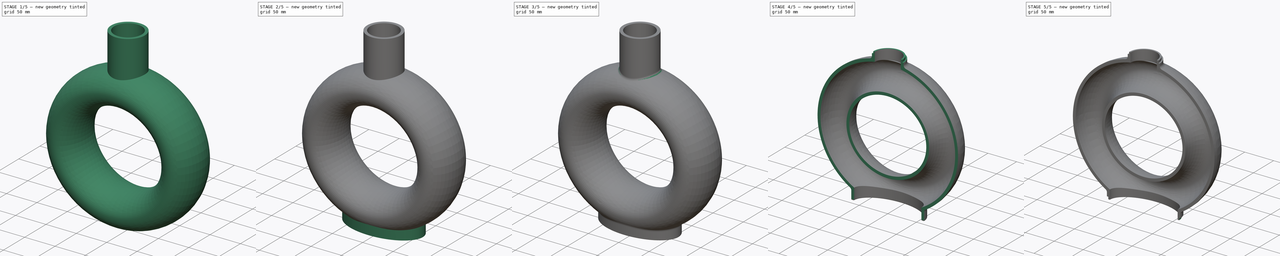
[diagram: build sequence overview — one tinted view per stage of 5, left to right]
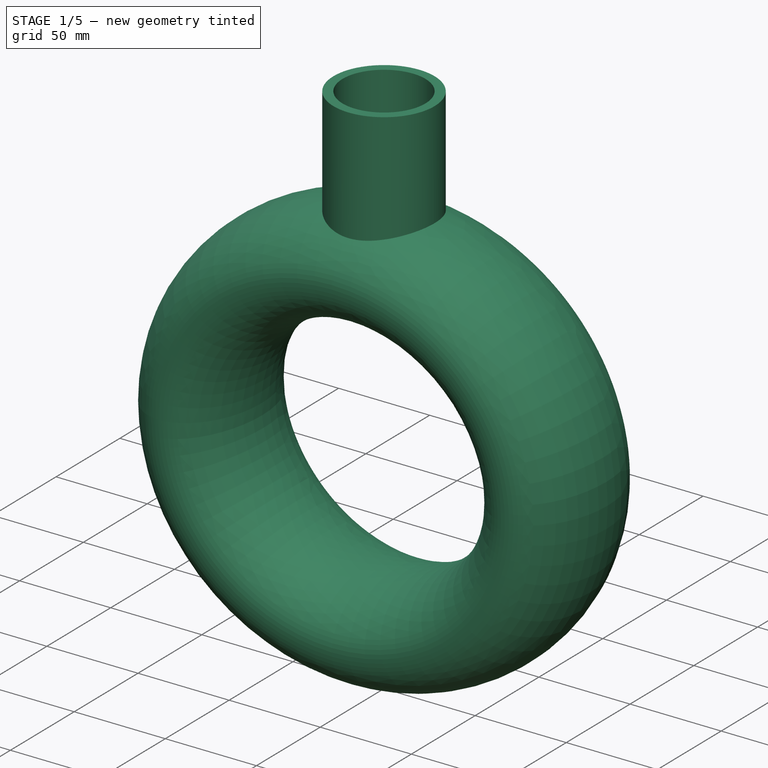
[diagram: stage 1 of 5 — iso view after this stage's code; geometry added in this stage tinted green]
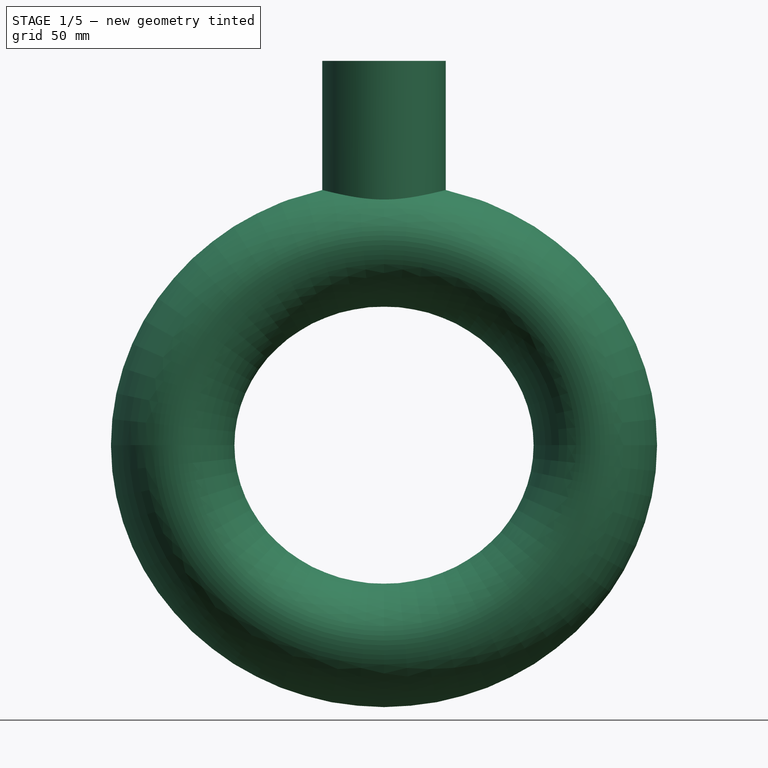
[diagram: stage 1 of 5 — front view after this stage's code; geometry added in this stage tinted green]
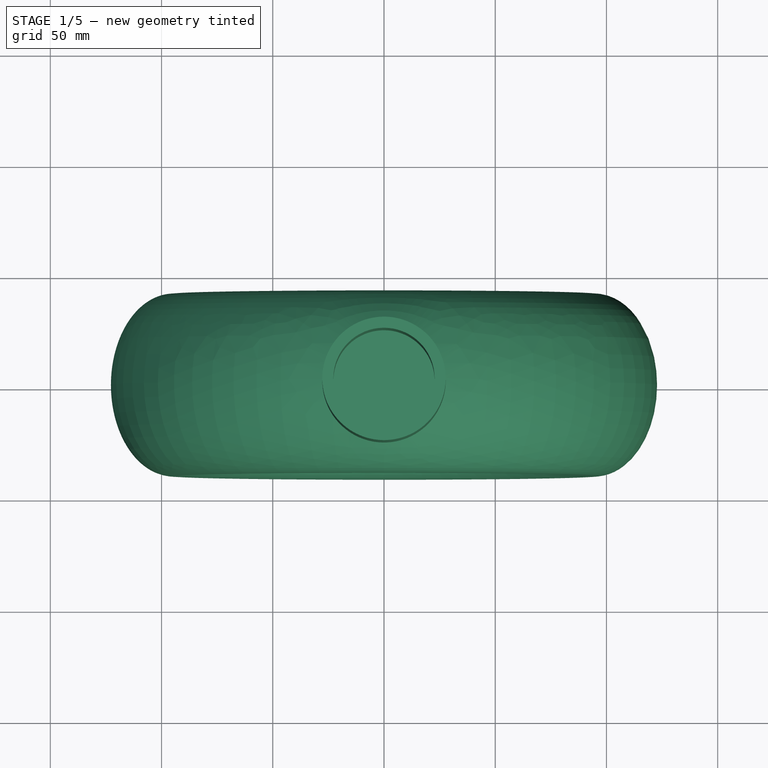
[diagram: stage 1 of 5 — top view after this stage's code; geometry added in this stage tinted green]
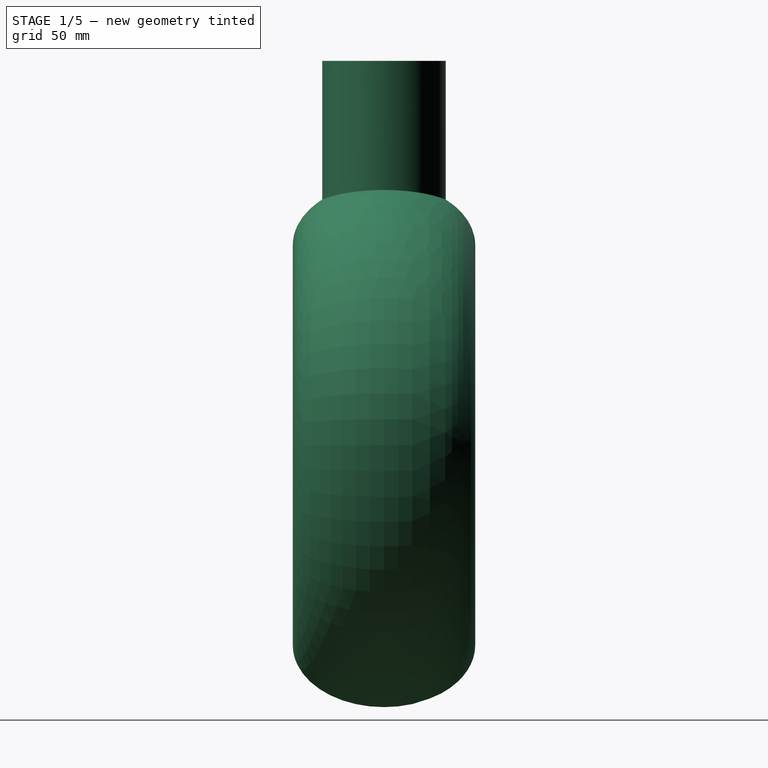
[diagram: stage 1 of 5 — right view after this stage's code; geometry added in this stage tinted green]
FCSTD DOCUMENT  (FreeCAD 0.21R33668 +26 (Git))
Label: VaseMainBody
License: All rights reserved
LicenseURL: http://en.wikipedia.org/wiki/All_rights_reserved
objects: Sketcher::SketchObject×12, PartDesign::Pocket×5, PartDesign::Fillet×4, PartDesign::Pad×3, Spreadsheet::Sheet×1, PartDesign::AdditivePipe×1, PartDesign::SubtractivePipe×1, PartDesign::Groove×1, PartDesign::Body×1
note: 43 computed .brp shape members not serialized (recipe doc carries the construction recipe); baked Part::Feature solids carry a one-line shape summary decoded from their .brp

FEATURE [Sketcher::SketchObject] Sketch  label="path"
  FullyConstrained = true
  MapMode = 5
  Placement = pos=(0,0,0) rot=(1,0,0;1.5708rad)
  Support = -> [XZ_Plane]
  expr: Constraints[4] = Spreadsheet.VaseWidth
  expr: Constraints[7] = Spreadsheet.VaseHeight
  sketch-geometry (5):
    g0: Ellipse CenterX=0 CenterY=0 CenterZ=0 NormalX=0 NormalY=0 NormalZ=1 MajorRadius=95 MinorRadius=90 AngleXU=-3.14159
    g1: LineSegment StartX=-95 StartY=0 StartZ=0 EndX=95 EndY=0 EndZ=0
    g2: LineSegment StartX=0 StartY=-90 StartZ=0 EndX=0 EndY=90 EndZ=0
    g3: GeomPoint X=-30.4138 Y=0 Z=0
    g4: GeomPoint X=30.4138 Y=0 Z=0
  constraints (5):
    c: InternalAlignment(g1-g4 -> g0) x4
    c: DistanceY(g2,g2) = 180
    c: Horizontal(g1)
    c: Coincident(g0,g-1)
    c: DistanceX(g1,g1) = 190
FEATURE [Spreadsheet::Sheet] Spreadsheet
  cells = A2='VaseDiameter; B2(VaseDiameter)=190; A3='EllipseWidth; B3(EllipseWidth)=82; A4='EllipseHeight; B4(EllipseHeight)=55.5; A5='wallThickness; B5(wallThickness)=5; A6='NeckHeight; B6(NeckHeight)=60; A7='NeckDiameter; B7(NeckDiameter)=55.5; A8='NeckOffset; B8(NeckOffset)=4; A9='BaseWidth; B9(BaseWidth)=127.5; A10='BaseHeight; B10(BaseHeight)=22.2; A11='BaseOffset; B11(BaseOffset)=2; A12='BaseDepth; B12(BaseDepth)=73.5; A13='VaseHeight; B13(VaseHeight)=190; A14='VaseWidth; B14(VaseWidth)=180; A15='BaseOffset2; B15(BaseOffset2)=17
FEATURE [Sketcher::SketchObject] Sketch001  label="EllipseRing"
  ExternalGeometry = -> [Sketch]
  FullyConstrained = true
  MapMode = 5
  Support = -> [XY_Plane]
  expr: Constraints[12] = Spreadsheet.EllipseHeight - 2 * Spreadsheet.wallThickness
  expr: Constraints[13] = Spreadsheet.EllipseWidth - 2 * Spreadsheet.wallThickness
  expr: Constraints[4] = <<Spreadsheet>>.EllipseHeight
  expr: Constraints[5] = Spreadsheet.EllipseWidth
  sketch-geometry (10):
    g0: Ellipse CenterX=-95 CenterY=0 CenterZ=0 NormalX=0 NormalY=0 NormalZ=1 MajorRadius=41 MinorRadius=27.75 AngleXU=1.5708
    g1: LineSegment StartX=-95 StartY=41 StartZ=0 EndX=-95 EndY=-41 EndZ=0
    g2: LineSegment StartX=-122.75 StartY=3.9e-15 StartZ=0 EndX=-67.25 EndY=-3.9e-15 EndZ=0
    g3: GeomPoint X=-95 Y=30.1817 Z=0
    g4: GeomPoint X=-95 Y=-30.1817 Z=0
    g5: Ellipse CenterX=-95 CenterY=0 CenterZ=0 NormalX=0 NormalY=0 NormalZ=1 MajorRadius=36 MinorRadius=22.75 AngleXU=1.5708
    g6: LineSegment StartX=-95 StartY=36 StartZ=0 EndX=-95 EndY=-36 EndZ=0
    g7: LineSegment StartX=-117.75 StartY=-3.8e-15 StartZ=0 EndX=-72.25 EndY=3.8e-15 EndZ=0
    g8: GeomPoint X=-95 Y=27.9005 Z=0
    g9: GeomPoint X=-95 Y=-27.9005 Z=0
  constraints (10):
    c: InternalAlignment(g1-g4 -> g0) x4
    c: DistanceX(g2,g2) = 55.5
    c: DistanceY(g1,g1) = 82
    c: Vertical(g1)
    c: InternalAlignment(g6-g9 -> g5) x4
    c: Coincident(g5,g0)
    c: DistanceX(g7,g7) = 45.5
    c: DistanceY(g6,g6) = 72
    c: Vertical(g6)
    c: Coincident(g0,g-3)
FEATURE [PartDesign::AdditivePipe] AdditivePipe
  AuxilleryCurvelinear = true
  AuxillerySpineTangent = false
  Binormal = (0,0,0)
  Mode = 0
  Profile = -> Sketch001
  Spine = -> Sketch
  SpineTangent = false
  Transformation = 0
  Transition = 0
FEATURE [Sketcher::SketchObject] Sketch002  label="Neck"
  AttachmentOffset = pos=(0,0,112.75) rot=(0,0,1;0rad)
  FullyConstrained = true
  MapMode = 5
  Placement = pos=(0,0,112.75) rot=(0,0,1;0rad)
  Support = -> [XY_Plane]
  expr: .AttachmentOffset.Base.z = Spreadsheet.VaseWidth / 2 + (Spreadsheet.EllipseHeight - 2 * Spreadsheet.wallThickness) / 2
  expr: Constraints[1] = Spreadsheet.NeckDiameter
  sketch-geometry (1):
    g0: Circle CenterX=0 CenterY=0 CenterZ=0 NormalX=0 NormalY=0 NormalZ=1 AngleXU=0 Radius=27.75
  constraints (2):
    c: Coincident(g0,g-1)
    c: Diameter(g0) = 55.5
FEATURE [PartDesign::Pad] Pad
  BaseFeature = -> AdditivePipe
  Direction = (0,0,1)
  Length = 60
  Length2 = 4
  Profile = -> Sketch002
  ReferenceAxis = -> Sketch002 [N_Axis]
  Type = 4
  expr: Length = Spreadsheet.NeckHeight
  expr: Length2 = Spreadsheet.NeckOffset
FEATURE [Sketcher::SketchObject] Sketch003
  FullyConstrained = true
  MapMode = 5
  Placement = pos=(0,0,172.75) rot=(0,0,1;0rad)
  Support = -> [Pad]
  expr: Constraints[1] = Spreadsheet.NeckDiameter - 2 * Spreadsheet.wallThickness
  sketch-geometry (1):
    g0: Circle CenterX=0 CenterY=0 CenterZ=0 NormalX=0 NormalY=0 NormalZ=1 AngleXU=0 Radius=22.75
  constraints (2):
    c: Coincident(g0,g-1)
    c: Diameter(g0) = 45.5
FEATURE [PartDesign::Pocket] Pocket
  BaseFeature = -> Pad
  Direction = (0,0,-1)
  Length = 64
  Length2 = 5
  Profile = -> Sketch003
  ReferenceAxis = -> Sketch003 [N_Axis]
  Type = 0
  expr: Length = Spreadsheet.NeckHeight + Spreadsheet.NeckOffset
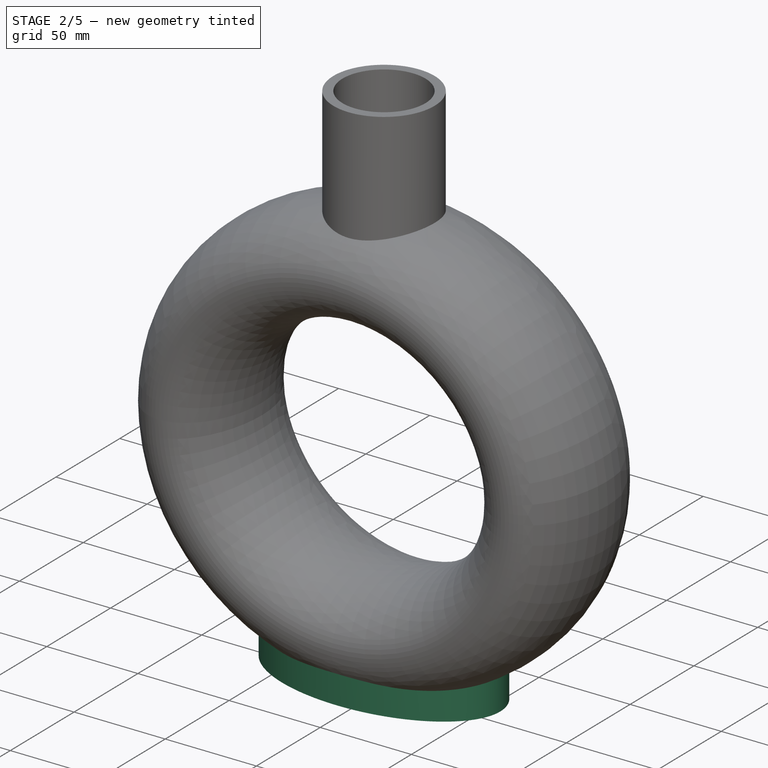
[diagram: stage 2 of 5 — iso view after this stage's code; geometry added in this stage tinted green]
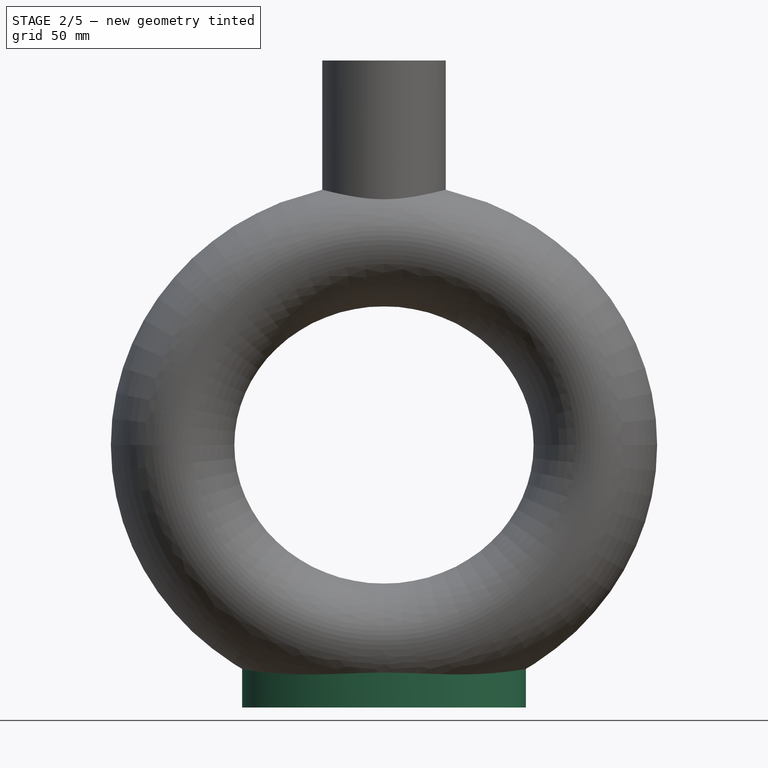
[diagram: stage 2 of 5 — front view after this stage's code; geometry added in this stage tinted green]
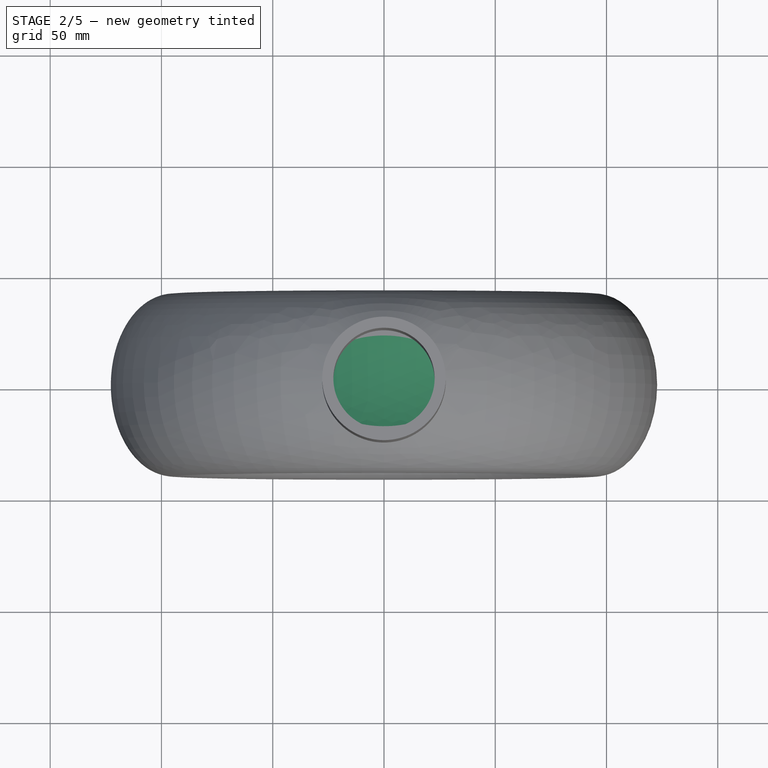
[diagram: stage 2 of 5 — top view after this stage's code; geometry added in this stage tinted green]
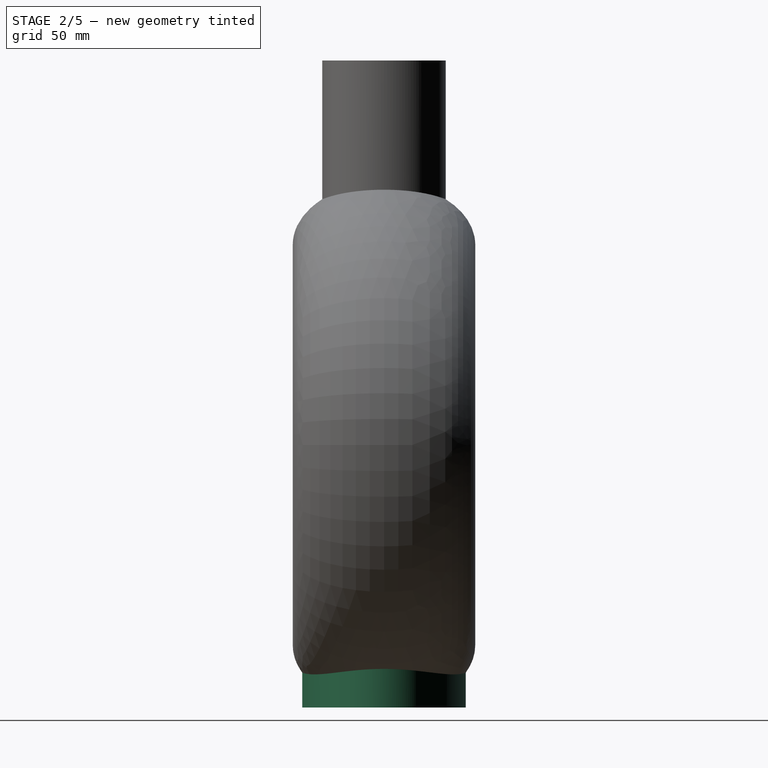
[diagram: stage 2 of 5 — right view after this stage's code; geometry added in this stage tinted green]
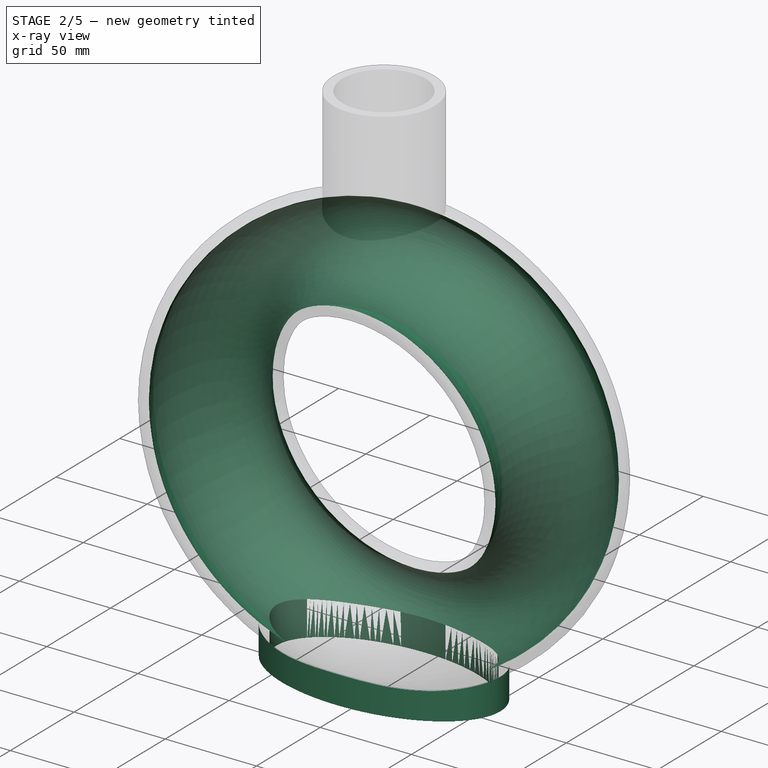
[diagram: stage 2 of 5 — x-ray composite at the iso view; earlier geometry ghosted, this stage's added geometry solid]
FEATURE [Sketcher::SketchObject] Sketch004
  AttachmentOffset = pos=(0,0,-95.75) rot=(0,0,1;0rad)
  FullyConstrained = true
  MapMode = 5
  Placement = pos=(0,0,-95.75) rot=(0,0,1;0rad)
  Support = -> [XY_Plane]
  expr: .AttachmentOffset.Base.z = -(Spreadsheet.VaseWidth / 2 + (Spreadsheet.EllipseHeight - 2 * Spreadsheet.wallThickness) / 2) + Spreadsheet.BaseOffset2
  expr: Constraints[5] = Spreadsheet.BaseDepth
  expr: Constraints[6] = Spreadsheet.BaseWidth
  sketch-geometry (5):
    g0: Ellipse CenterX=0 CenterY=0 CenterZ=0 NormalX=0 NormalY=0 NormalZ=1 MajorRadius=63.75 MinorRadius=36.75 AngleXU=3.14159
    g1: LineSegment StartX=-63.75 StartY=0 StartZ=0 EndX=63.75 EndY=0 EndZ=0
    g2: LineSegment StartX=0 StartY=-36.75 StartZ=0 EndX=0 EndY=36.75 EndZ=0
    g3: GeomPoint X=-52.0913 Y=0 Z=0
    g4: GeomPoint X=52.0913 Y=0 Z=0
  constraints (5):
    c: InternalAlignment(g1-g4 -> g0) x4
    c: Coincident(g0,g-1)
    c: DistanceY(g2,g2) = 73.5
    c: DistanceX(g1,g1) = 127.5
    c: Vertical(g2)
FEATURE [PartDesign::Pad] Pad001
  BaseFeature = -> Pocket
  Direction = (0,0,1)
  Length = -22.2
  Length2 = -2
  Profile = -> Sketch004
  ReferenceAxis = -> Sketch004 [N_Axis]
  Type = 4
  expr: Length = -Spreadsheet.BaseHeight
  expr: Length2 = -Spreadsheet.BaseOffset
FEATURE [Sketcher::SketchObject] Sketch005
  ExternalGeometry = -> [Sketch]
  FullyConstrained = true
  MapMode = 5
  Support = -> [XY_Plane]
  expr: Constraints[4] = Spreadsheet.EllipseHeight - 2 * Spreadsheet.wallThickness
  expr: Constraints[5] = Spreadsheet.EllipseWidth - 2 * Spreadsheet.wallThickness
  sketch-geometry (5):
    g0: Ellipse CenterX=-95 CenterY=0 CenterZ=0 NormalX=0 NormalY=0 NormalZ=1 MajorRadius=36 MinorRadius=22.75 AngleXU=-1.5708
    g1: LineSegment StartX=-95 StartY=-36 StartZ=0 EndX=-95 EndY=36 EndZ=0
    g2: LineSegment StartX=-72.25 StartY=-3.8e-15 StartZ=0 EndX=-117.75 EndY=3.8e-15 EndZ=0
    g3: GeomPoint X=-95 Y=-27.9005 Z=0
    g4: GeomPoint X=-95 Y=27.9005 Z=0
  constraints (5):
    c: InternalAlignment(g1-g4 -> g0) x4
    c: DistanceX(g2,g2) = 45.5
    c: DistanceY(g1,g1) = 72
    c: Vertical(g1)
    c: Coincident(g0,g-3)
FEATURE [PartDesign::SubtractivePipe] SubtractivePipe
  AuxilleryCurvelinear = true
  AuxillerySpineTangent = false
  BaseFeature = -> Pad001
  Binormal = (0,0,0)
  Mode = 0
  Profile = -> Sketch005
  Spine = -> Sketch [Edge1]
  SpineTangent = false
  Transformation = 0
  Transition = 0
FEATURE [Sketcher::SketchObject] Sketch006
  FullyConstrained = true
  MapMode = 5
  Placement = pos=(0,0,-117.95) rot=(1,0,0;3.14159rad)
  Support = -> [SubtractivePipe]
  expr: Constraints[5] = Spreadsheet.BaseDepth - 2 * Spreadsheet.wallThickness
  expr: Constraints[6] = Spreadsheet.BaseWidth - 2 * Spreadsheet.wallThickness
  sketch-geometry (5):
    g0: Ellipse CenterX=0 CenterY=0 CenterZ=0 NormalX=0 NormalY=0 NormalZ=1 MajorRadius=58.75 MinorRadius=31.75 AngleXU=-3.14159
    g1: LineSegment StartX=-58.75 StartY=0 StartZ=0 EndX=58.75 EndY=0 EndZ=0
    g2: LineSegment StartX=-1.042e-13 StartY=-31.75 StartZ=0 EndX=1.042e-13 EndY=31.75 EndZ=0
    g3: GeomPoint X=-49.4318 Y=-6.69e-14 Z=0
    g4: GeomPoint X=49.4318 Y=6.69e-14 Z=0
  constraints (5):
    c: InternalAlignment(g1-g4 -> g0) x4
    c: Coincident(g0,g-1)
    c: DistanceY(g2,g2) = 63.5
    c: DistanceX(g1,g1) = 117.5
    c: Horizontal(g1)
FEATURE [PartDesign::Pocket] Pocket001
  BaseFeature = -> SubtractivePipe
  Direction = (0,0,1)
  Length = 24.2
  Length2 = 5
  Profile = -> Sketch006
  ReferenceAxis = -> Sketch006 [N_Axis]
  Type = 0
  expr: Length = Spreadsheet.BaseHeight + Spreadsheet.BaseOffset
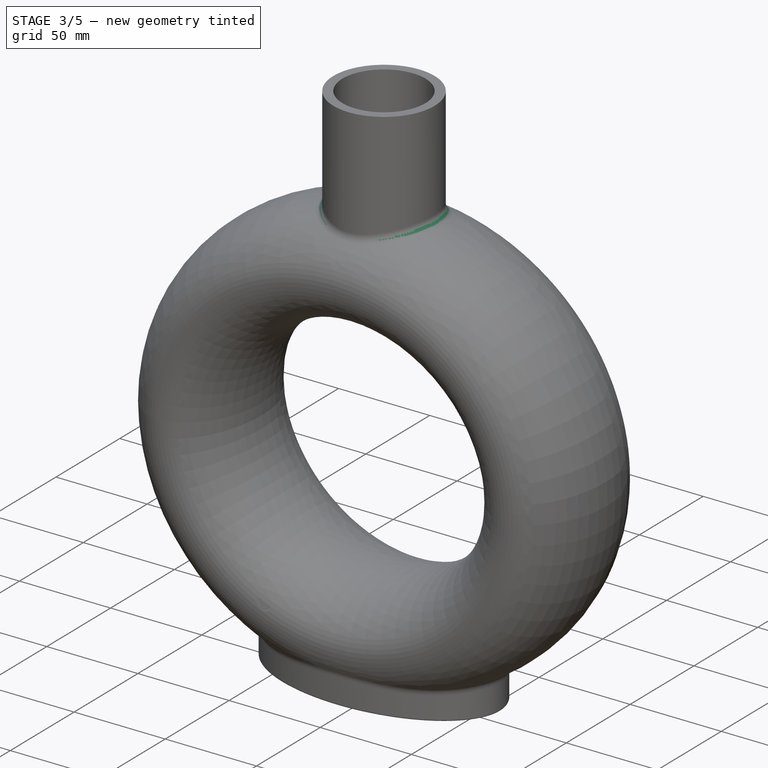
[diagram: stage 3 of 5 — iso view after this stage's code; geometry added in this stage tinted green]
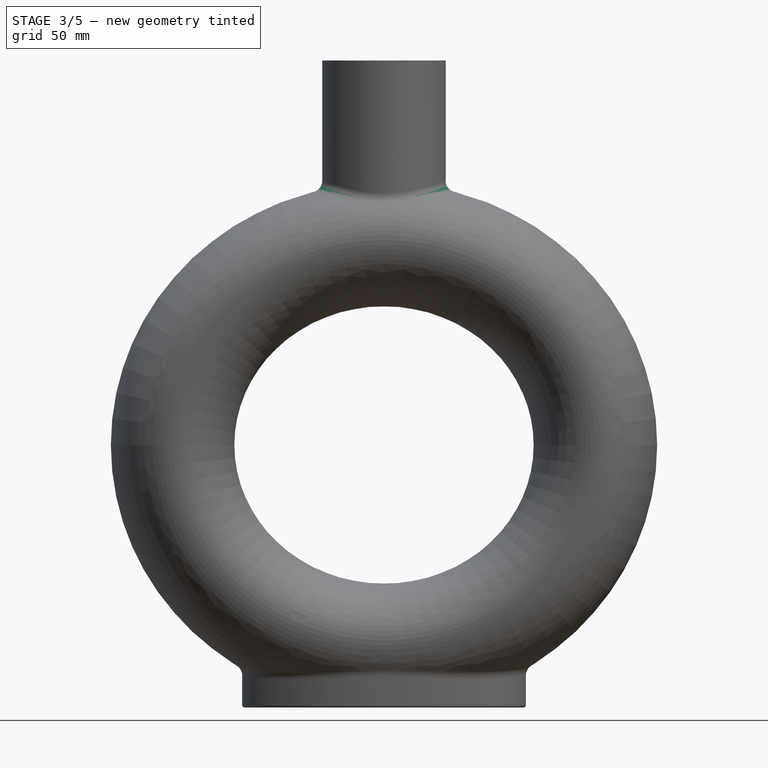
[diagram: stage 3 of 5 — front view after this stage's code; geometry added in this stage tinted green]
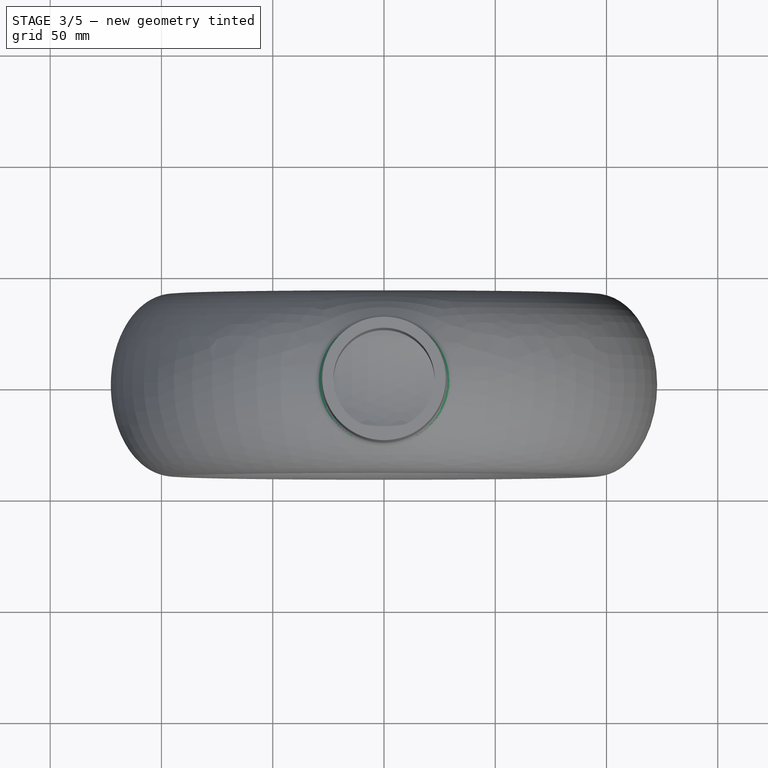
[diagram: stage 3 of 5 — top view after this stage's code; geometry added in this stage tinted green]
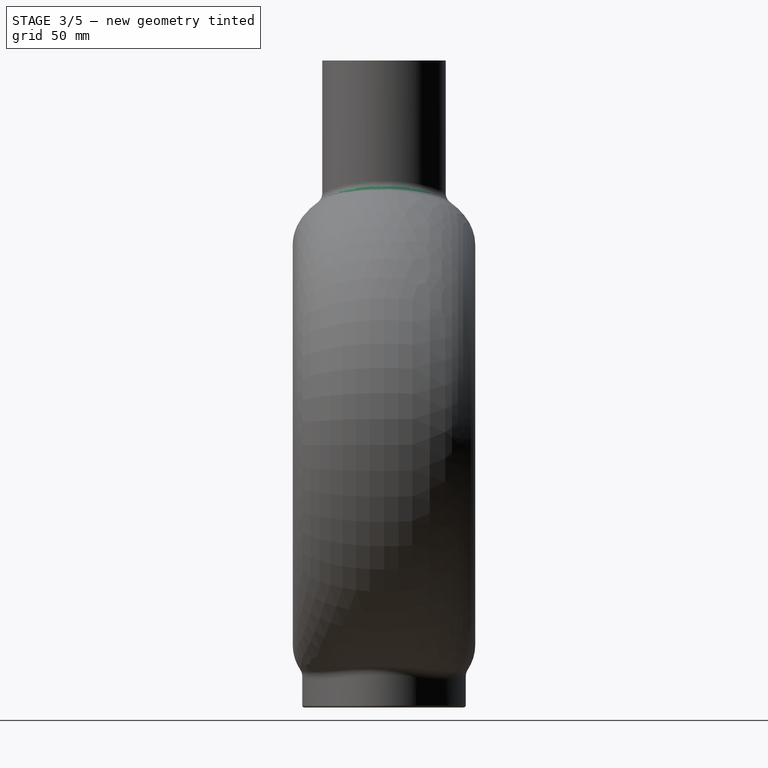
[diagram: stage 3 of 5 — right view after this stage's code; geometry added in this stage tinted green]
FEATURE [PartDesign::Fillet] Fillet
  Base = -> Pocket001 [Edge10,Edge7]
  BaseFeature = -> Pocket001
  Radius = 1
  SupportTransform = false
  UseAllEdges = false
FEATURE [PartDesign::Fillet] Fillet001
  Base = -> Fillet [Edge3]
  BaseFeature = -> Fillet
  Radius = 5
  SupportTransform = false
  UseAllEdges = false
FEATURE [PartDesign::Fillet] Fillet002
  Base = -> Fillet001 [Edge11]
  BaseFeature = -> Fillet001
  Radius = 5
  SupportTransform = false
  UseAllEdges = false
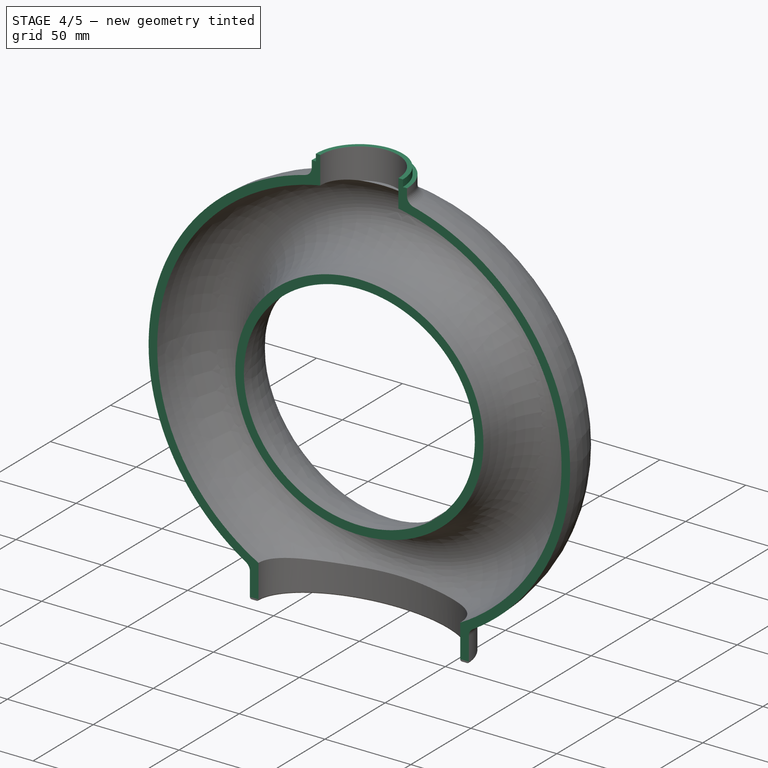
[diagram: stage 4 of 5 — iso view after this stage's code; geometry added in this stage tinted green]
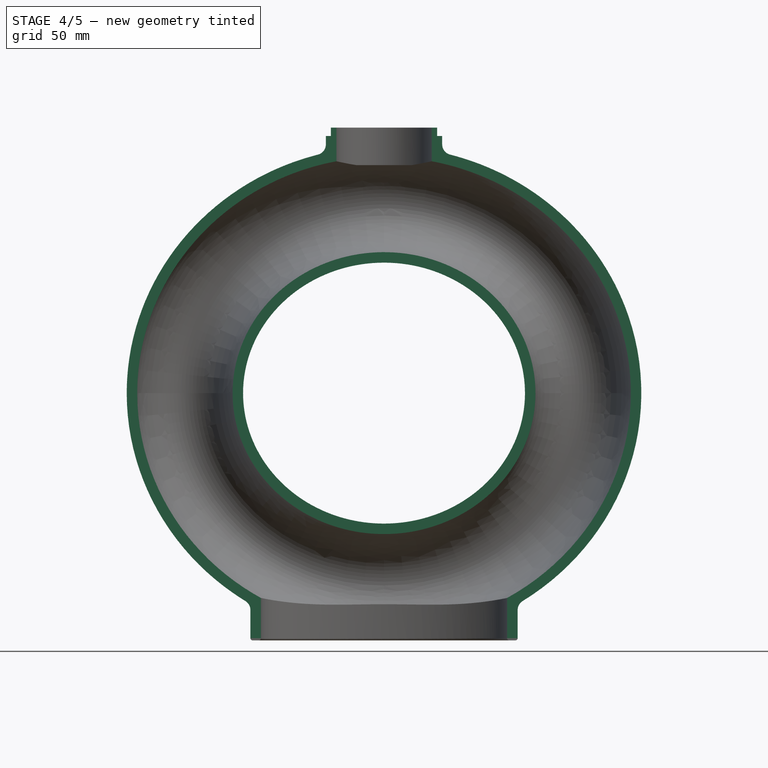
[diagram: stage 4 of 5 — front view after this stage's code; geometry added in this stage tinted green]
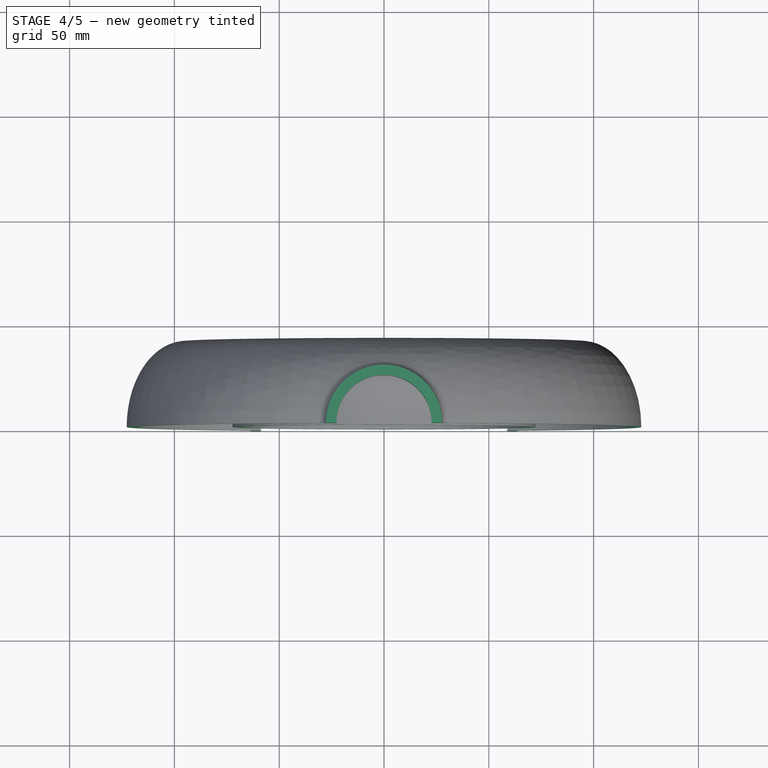
[diagram: stage 4 of 5 — top view after this stage's code; geometry added in this stage tinted green]
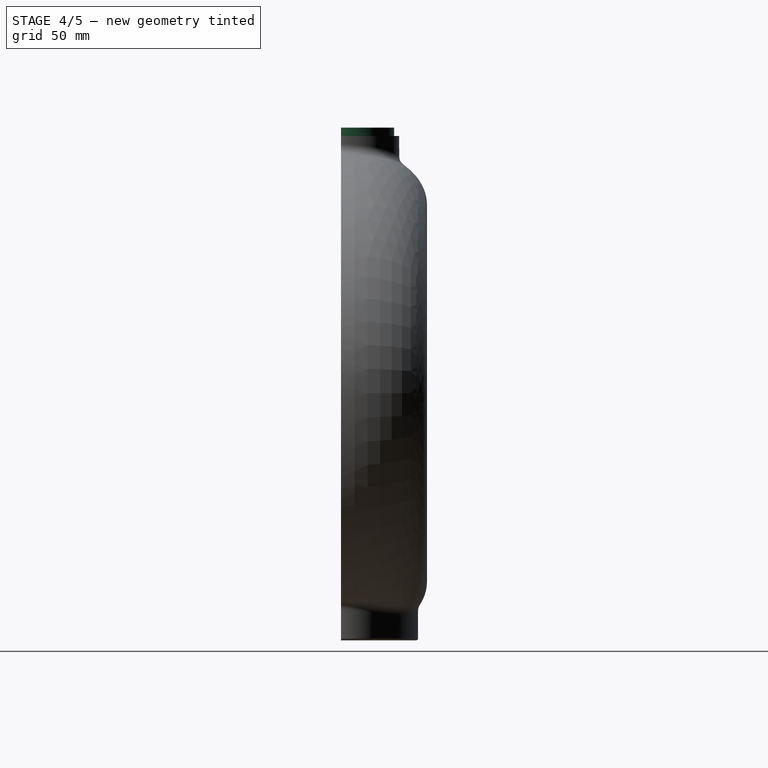
[diagram: stage 4 of 5 — right view after this stage's code; geometry added in this stage tinted green]
FEATURE [PartDesign::Fillet] Fillet003
  Base = -> Fillet002 [Edge10,Edge13]
  BaseFeature = -> Fillet002
  Radius = 1
  SupportTransform = false
  UseAllEdges = false
FEATURE [Sketcher::SketchObject] Sketch007
  FullyConstrained = true
  MapMode = 5
  Placement = pos=(0,0,0) rot=(1,0,0;1.5708rad)
  Support = -> [XZ_Plane]
  sketch-geometry (5):
    g0: LineSegment StartX=200 StartY=-200 StartZ=0 EndX=200 EndY=200 EndZ=0
    g1: LineSegment StartX=200 StartY=200 StartZ=0 EndX=-200 EndY=200 EndZ=0
    g2: LineSegment StartX=-200 StartY=200 StartZ=0 EndX=-200 EndY=-200 EndZ=0
    g3: LineSegment StartX=-200 StartY=-200 StartZ=0 EndX=200 EndY=-200 EndZ=0
    g4: GeomPoint X=0 Y=0 Z=0
  constraints (12):
    c: Coincident(g0,g1)
    c: Coincident(g1,g2)
    c: Coincident(g2,g3)
    c: Coincident(g3,g0)
    c: Horizontal(g1)
    c: Horizontal(g3)
    c: Vertical(g0)
    c: Vertical(g2)
    c: Symmetric(g1,g0,g4)
    c: Coincident(g4,g-1)
    c: Equal(g0,g1)
    c: DistanceX(g1,g1) = 400
FEATURE [PartDesign::Pocket] Pocket002
  BaseFeature = -> Fillet003
  Direction = (0,1,-2e-16)
  Length = 64
  Length2 = 5
  Profile = -> Sketch007
  ReferenceAxis = -> Sketch007 [N_Axis]
  Reversed = true
  Type = 1
FEATURE [Sketcher::SketchObject] Sketch008
  ExternalGeometry = -> [Pocket002]
  FullyConstrained = true
  MapMode = 5
  Placement = pos=(0,0,0) rot=(1,0,0;1.5708rad)
  Support = -> [XZ_Plane]
  sketch-geometry (32):
    g0: LineSegment StartX=-63.75 StartY=-103.467 StartZ=0 EndX=63.75 EndY=-103.467 EndZ=0
    g1: LineSegment StartX=-27.75 StartY=118.65 StartZ=0 EndX=27.75 EndY=118.65 EndZ=0
    g2: LineSegment StartX=-27.75 StartY=126.65 StartZ=0 EndX=27.75 EndY=126.65 EndZ=0
    g3: LineSegment StartX=-63.75 StartY=-111.467 StartZ=0 EndX=63.75 EndY=-111.467 EndZ=0
    g4: LineSegment StartX=-27.75 StartY=126.65 StartZ=0 EndX=-25.35 EndY=126.65 EndZ=0
    g5: LineSegment StartX=27.75 StartY=126.65 StartZ=0 EndX=25.35 EndY=126.65 EndZ=0
    g6: LineSegment StartX=-25.35 StartY=126.65 StartZ=0 EndX=-25.35 EndY=122.65 EndZ=0
    g7: LineSegment StartX=25.35 StartY=126.65 StartZ=0 EndX=25.35 EndY=122.65 EndZ=0
    g8: LineSegment StartX=-25.35 StartY=122.65 StartZ=0 EndX=25.35 EndY=122.65 EndZ=0
    g9: LineSegment StartX=-27.75 StartY=126.65 StartZ=0 EndX=-32.75 EndY=126.65 EndZ=0
    g10: LineSegment StartX=27.75 StartY=126.65 StartZ=0 EndX=32.75 EndY=126.65 EndZ=0
    g11: LineSegment StartX=32.75 StartY=126.65 StartZ=0 EndX=32.75 EndY=186.65 EndZ=0
    g12: LineSegment StartX=-32.75 StartY=126.65 StartZ=0 EndX=-32.75 EndY=186.65 EndZ=0
    g13: LineSegment StartX=-32.75 StartY=186.65 StartZ=0 EndX=32.75 EndY=186.65 EndZ=0
    g14: LineSegment StartX=-25.35 StartY=126.65 StartZ=0 EndX=25.35 EndY=126.65 EndZ=0
    g15: LineSegment StartX=-25.35 StartY=122.65 StartZ=0 EndX=-32.75 EndY=122.65 EndZ=0
    g16: LineSegment StartX=-32.75 StartY=126.65 StartZ=0 EndX=-32.75 EndY=122.65 EndZ=0
    g17: LineSegment StartX=25.35 StartY=122.65 StartZ=0 EndX=32.75 EndY=122.65 EndZ=0
    g18: LineSegment StartX=32.75 StartY=126.65 StartZ=0 EndX=32.75 EndY=122.65 EndZ=0
    g19: LineSegment StartX=-63.75 StartY=-107.467 StartZ=0 EndX=-61.35 EndY=-107.467 EndZ=0
    g20: LineSegment StartX=63.75 StartY=-107.467 StartZ=0 EndX=61.35 EndY=-107.467 EndZ=0
    g21: LineSegment StartX=-61.35 StartY=-107.467 StartZ=0 EndX=-61.35 EndY=-103.467 EndZ=0
    g22: LineSegment StartX=61.35 StartY=-107.467 StartZ=0 EndX=61.35 EndY=-103.467 EndZ=0
    g23: LineSegment StartX=61.35 StartY=-103.467 StartZ=0 EndX=-61.35 EndY=-103.467 EndZ=0
    g24: LineSegment StartX=-63.75 StartY=-107.467 StartZ=0 EndX=-68.75 EndY=-107.467 EndZ=0
    g25: LineSegment StartX=63.75 StartY=-107.467 StartZ=0 EndX=68.75 EndY=-107.467 EndZ=0
    g26: LineSegment StartX=-68.75 StartY=-107.467 StartZ=0 EndX=-68.75 EndY=-137.467 EndZ=0
    g27: LineSegment StartX=-68.75 StartY=-137.467 StartZ=0 EndX=68.75 EndY=-137.467 EndZ=0
    g28: LineSegment StartX=68.75 StartY=-137.467 StartZ=0 EndX=68.75 EndY=-107.467 EndZ=0
    g29: LineSegment StartX=-25.35 StartY=126.65 StartZ=0 EndX=0 EndY=126.65 EndZ=0
    g30: LineSegment StartX=0 StartY=126.65 StartZ=0 EndX=0 EndY=186.65 EndZ=0
    g31: LineSegment StartX=-32.75 StartY=186.65 StartZ=0 EndX=0 EndY=186.65 EndZ=0
  constraints (91):
    c: Coincident(g0,g-3)
    c: Coincident(g0,g-4)
    c: Coincident(g1,g-5)
    c: Coincident(g1,g-6)
    c: PointOnObject(g2,g-7)
    c: PointOnObject(g2,g-8)
    c: Horizontal(g2)
    c: DistanceY(g1,g2) = 8
    c: PointOnObject(g3,g-9)
    c: PointOnObject(g3,g-10)
    c: Horizontal(g3)
    c: DistanceY(g3,g0) = 8
    c: Coincident(g4,g2)
    c: PointOnObject(g4,g2)
    c: Coincident(g5,g2)
    c: PointOnObject(g5,g2)
    c: Equal(g5,g4)
    c: DistanceX(g4,g4) = 2.4
    c: Coincident(g6,g4)
    c: Vertical(g6)
    c: Coincident(g7,g5)
    c: Vertical(g7)
    c: Coincident(g8,g6)
    c: Coincident(g8,g7)
    c: Horizontal(g8)
    c: DistanceY(g6,g6) = 4
    c: Coincident(g9,g4)
    c: Horizontal(g9)
    c: Coincident(g10,g5)
    c: Horizontal(g10)
    c: Equal(g10,g9)
    c: DistanceX(g10,g10) = 5
    c: Coincident(g11,g10)
    c: Vertical(g11)
    c: Coincident(g12,g9)
    c: Vertical(g12)
    c: Equal(g12,g11)
    c: DistanceY(g11,g11) = 60
    c: PointOnObject(g13,g12)
    c: Coincident(g13,g11)
    c: Horizontal(g13)
    c: Coincident(g14,g4)
    c: Coincident(g14,g7)
    c: Coincident(g15,g6)
    c: Horizontal(g15)
    c: Coincident(g16,g12)
    c: Coincident(g16,g15)
    c: Vertical(g16)
    c: Coincident(g17,g7)
    c: Horizontal(g17)
    c: Coincident(g18,g11)
    c: Coincident(g18,g17)
    c: Vertical(g18)
    c: PointOnObject(g19,g-9)
    c: Horizontal(g19)
    c: PointOnObject(g20,g-10)
    c: Horizontal(g20)
    c: Equal(g20,g19)
    c: DistanceX(g19,g19) = 2.4
    c: DistanceY(g19,g0) = 4
    c: Coincident(g21,g19)
    c: PointOnObject(g21,g0)
    c: Vertical(g21)
    c: Horizontal(g20,g19)
    c: Coincident(g22,g20)
    c: PointOnObject(g22,g0)
    c: Vertical(g22)
    c: Coincident(g23,g22)
    c: Coincident(g23,g21)
    c: Coincident(g24,g19)
    c: Horizontal(g24)
    c: Coincident(g25,g20)
    c: Horizontal(g25)
    c: Equal(g25,g24)
    c: DistanceX(g24,g24) = 5
    c: Coincident(g26,g24)
    c: Vertical(g26)
    c: Coincident(g27,g26)
    c: Horizontal(g27)
    c: Coincident(g28,g27)
    c: Coincident(g28,g25)
    c: Vertical(g28)
    c: DistanceY(g28,g28) = 30
    c: Coincident(g29,g6)
    c: PointOnObject(g29,g-2)
    c: PointOnObject(g29,g2)
    c: Coincident(g30,g29)
    c: PointOnObject(g30,g13)
    c: Vertical(g30)
    c: Coincident(g31,g12)
    c: Coincident(g31,g30)
FEATURE [PartDesign::Groove] Groove
  Angle = 360
  Axis = (0,2e-16,1)
  Base = (0,0,0)
  BaseFeature = -> Pocket002
  Profile = -> Sketch008
  ReferenceAxis = -> Sketch008 [V_Axis]
  Reversed = true
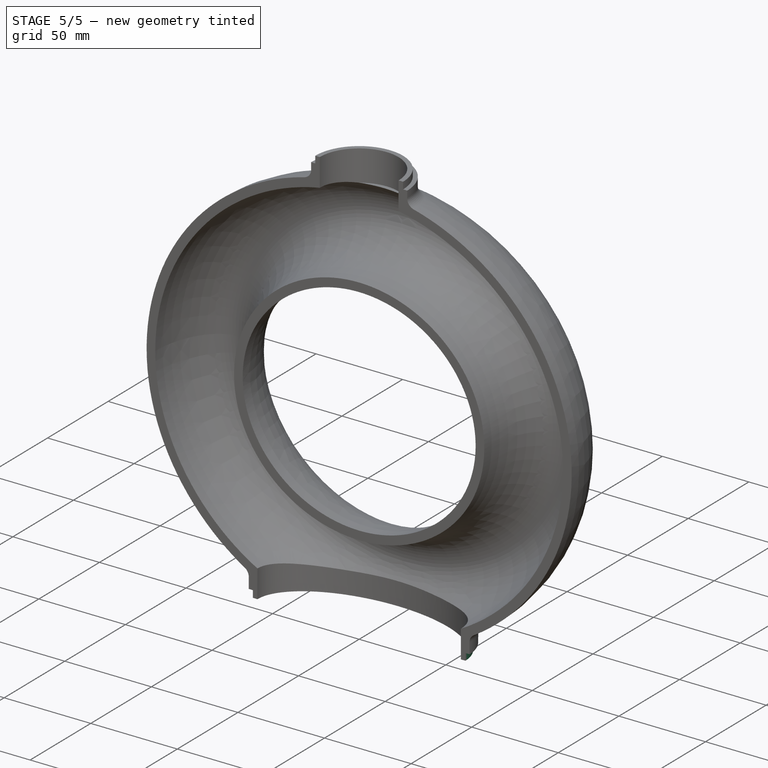
[diagram: stage 5 of 5 — iso view after this stage's code; geometry added in this stage tinted green]
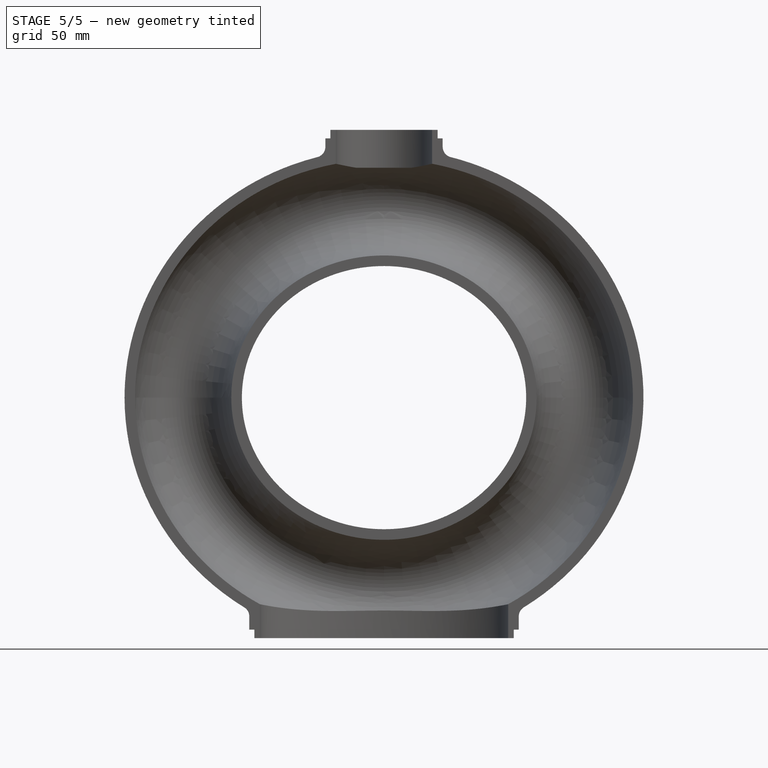
[diagram: stage 5 of 5 — front view after this stage's code; geometry added in this stage tinted green]
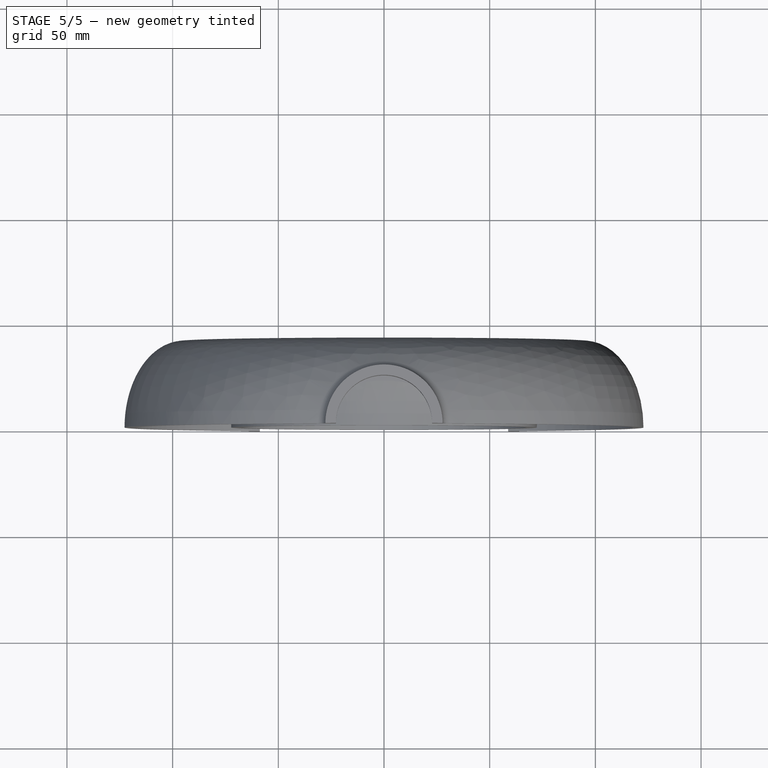
[diagram: stage 5 of 5 — top view after this stage's code; geometry added in this stage tinted green]
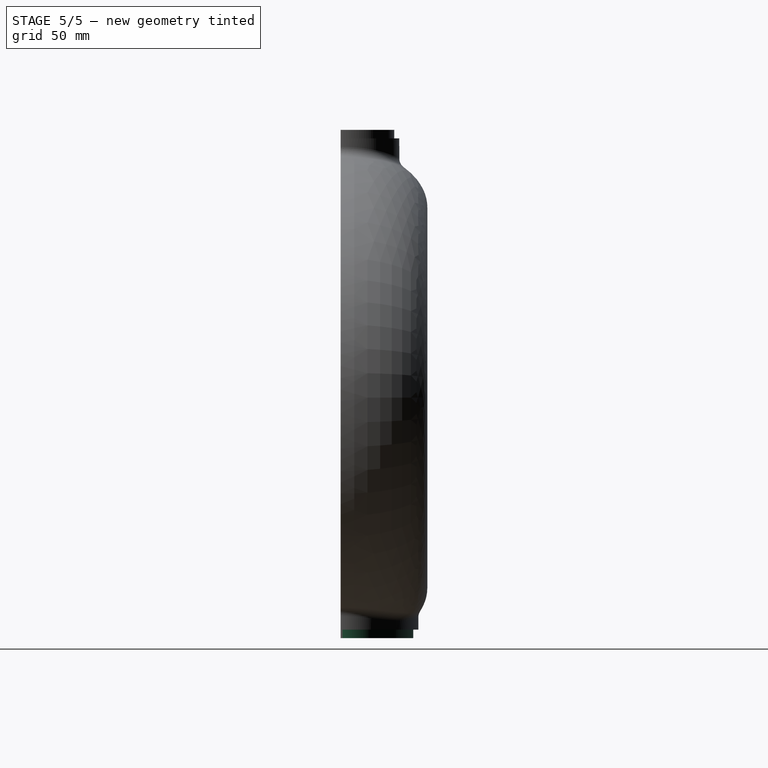
[diagram: stage 5 of 5 — right view after this stage's code; geometry added in this stage tinted green]
FEATURE [Sketcher::SketchObject] Sketch009
  AttachmentOffset = pos=(0,0,-109.75) rot=(0,0,1;0rad)
  FullyConstrained = true
  MapMode = 5
  Placement = pos=(0,0,-109.75) rot=(0,0,1;0rad)
  Support = -> [XY_Plane]
  expr: .AttachmentOffset.Base.z = -(Spreadsheet.VaseWidth / 2 + (Spreadsheet.EllipseHeight - 2 * Spreadsheet.wallThickness) / 2) + Spreadsheet.BaseOffset2 - 14
  expr: Constraints[5] = Spreadsheet.BaseWidth
  expr: Constraints[6] = Spreadsheet.BaseDepth
  sketch-geometry (5):
    g0: Ellipse CenterX=0 CenterY=0 CenterZ=0 NormalX=0 NormalY=0 NormalZ=1 MajorRadius=63.75 MinorRadius=36.75 AngleXU=0
    g1: LineSegment StartX=63.75 StartY=0 StartZ=0 EndX=-63.75 EndY=0 EndZ=0
    g2: LineSegment StartX=0 StartY=36.75 StartZ=0 EndX=0 EndY=-36.75 EndZ=0
    g3: GeomPoint X=52.0913 Y=0 Z=0
    g4: GeomPoint X=-52.0913 Y=0 Z=0
  constraints (5):
    c: InternalAlignment(g1-g4 -> g0) x4
    c: Coincident(g0,g-1)
    c: DistanceX(g1,g1) = 127.5
    c: DistanceY(g2,g2) = 73.5
    c: Horizontal(g1)
FEATURE [Sketcher::SketchObject] Sketch010
  AttachmentOffset = pos=(0,0,-109.75) rot=(0,0,1;0rad)
  FullyConstrained = true
  MapMode = 5
  Placement = pos=(0,0,-109.75) rot=(0,0,1;0rad)
  Support = -> [XY_Plane]
  expr: .AttachmentOffset.Base.z = -(Spreadsheet.VaseWidth / 2 + (Spreadsheet.EllipseHeight - 2 * Spreadsheet.wallThickness) / 2) + Spreadsheet.BaseOffset2 - 14
  expr: Constraints[13] = Spreadsheet.BaseDepth - 2 * Spreadsheet.wallThickness
  expr: Constraints[14] = Spreadsheet.BaseWidth - 2 * Spreadsheet.wallThickness
  expr: Constraints[5] = Spreadsheet.BaseWidth - 4.8
  expr: Constraints[6] = Spreadsheet.BaseDepth - 4.8
  sketch-geometry (10):
    g0: Ellipse CenterX=0 CenterY=0 CenterZ=0 NormalX=0 NormalY=0 NormalZ=1 MajorRadius=61.35 MinorRadius=34.35 AngleXU=0
    g1: LineSegment StartX=61.35 StartY=0 StartZ=0 EndX=-61.35 EndY=0 EndZ=0
    g2: LineSegment StartX=0 StartY=34.35 StartZ=0 EndX=0 EndY=-34.35 EndZ=0
    g3: GeomPoint X=50.8321 Y=0 Z=0
    g4: GeomPoint X=-50.8321 Y=0 Z=0
    g5: Ellipse CenterX=0 CenterY=0 CenterZ=0 NormalX=0 NormalY=0 NormalZ=1 MajorRadius=58.75 MinorRadius=31.75 AngleXU=-3.14159
    g6: LineSegment StartX=-58.75 StartY=-5.664e-13 StartZ=0 EndX=58.75 EndY=0 EndZ=0
    g7: LineSegment StartX=0 StartY=-31.75 StartZ=0 EndX=0 EndY=31.75 EndZ=0
    g8: GeomPoint X=-49.4318 Y=-6.732e-13 Z=0
    g9: GeomPoint X=49.4318 Y=6.732e-13 Z=0
  constraints (10):
    c: InternalAlignment(g1-g4 -> g0) x4
    c: Coincident(g0,g-1)
    c: DistanceX(g1,g1) = 122.7
    c: DistanceY(g2,g2) = 68.7
    c: Vertical(g2)
    c: InternalAlignment(g6-g9 -> g5) x4
    c: Coincident(g5,g0)
    c: DistanceY(g7,g7) = 63.5
    c: DistanceX(g6,g6) = 117.5
    c: Vertical(g7)
FEATURE [PartDesign::Pocket] Pocket003
  BaseFeature = -> Groove
  Direction = (0,0,-1)
  Length = 23
  Length2 = 5
  Profile = -> Sketch009
  ReferenceAxis = -> Sketch009 [N_Axis]
  Type = 1
FEATURE [PartDesign::Pad] Pad002
  BaseFeature = -> Pocket003
  Direction = (0,0,1)
  Length = 4
  Length2 = 10
  Profile = -> Sketch010
  ReferenceAxis = -> Sketch010 [N_Axis]
  Reversed = true
  Type = 0
FEATURE [Sketcher::SketchObject] Sketch011
  FullyConstrained = true
  MapMode = 5
  Placement = pos=(0,0,0) rot=(1,0,0;1.5708rad)
  Support = -> [XZ_Plane]
  sketch-geometry (5):
    g0: LineSegment StartX=180 StartY=180 StartZ=0 EndX=180 EndY=-180 EndZ=0
    g1: LineSegment StartX=180 StartY=-180 StartZ=0 EndX=-180 EndY=-180 EndZ=0
    g2: LineSegment StartX=-180 StartY=-180 StartZ=0 EndX=-180 EndY=180 EndZ=0
    g3: LineSegment StartX=-180 StartY=180 StartZ=0 EndX=180 EndY=180 EndZ=0
    g4: GeomPoint X=0 Y=0 Z=0
  constraints (12):
    c: Coincident(g0,g1)
    c: Coincident(g1,g2)
    c: Coincident(g2,g3)
    c: Coincident(g3,g0)
    c: Horizontal(g1)
    c: Horizontal(g3)
    c: Vertical(g0)
    c: Vertical(g2)
    c: Symmetric(g1,g0,g4)
    c: Coincident(g4,g-1)
    c: Equal(g1,g2)
    c: DistanceY(g0,g0) = 360
FEATURE [PartDesign::Pocket] Pocket004
  BaseFeature = -> Pad002
  Direction = (0,1,-2e-16)
  Length = 5
  Length2 = 5
  Profile = -> Sketch011
  ReferenceAxis = -> Sketch011 [N_Axis]
  Reversed = true
  Type = 1
FEATURE [PartDesign::Body] Body  label="Vase"
  Group = -> [Sketch,Sketch001,AdditivePipe,Sketch002,Pad,Sketch003,Pocket,Sketch004,Pad001,Sketch005,SubtractivePipe,Sketch006,Pocket001,Fillet,Fillet001,Fillet002,Fillet003,Sketch007,Pocket002,Sketch008,Groove,Sketch009,Sketch010,Pocket003,Pad002,Sketch011,Pocket004]
  Origin = -> Origin
  Tip = -> Pocket004
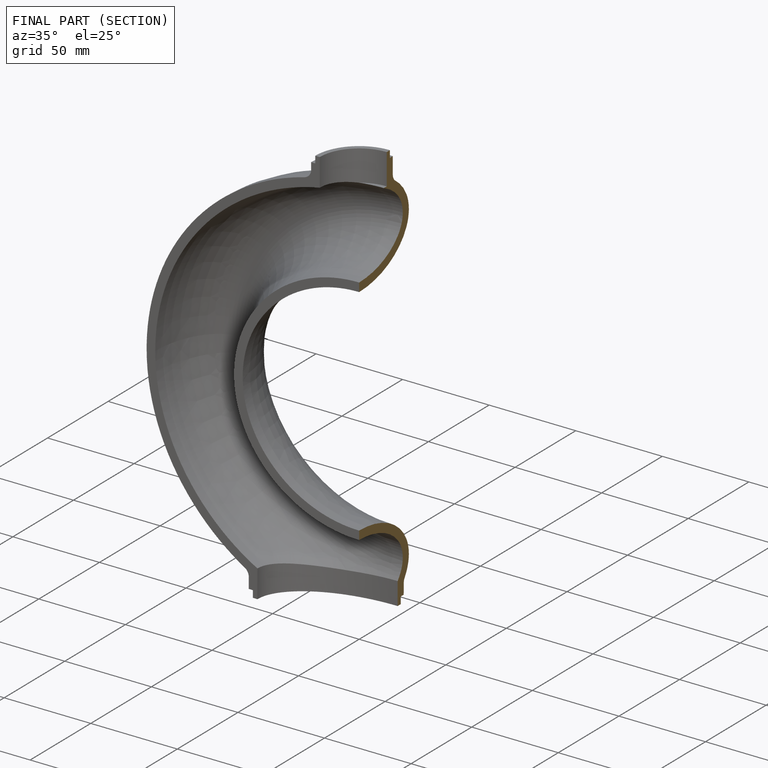
[diagram: finished part — half-section view (interior)]
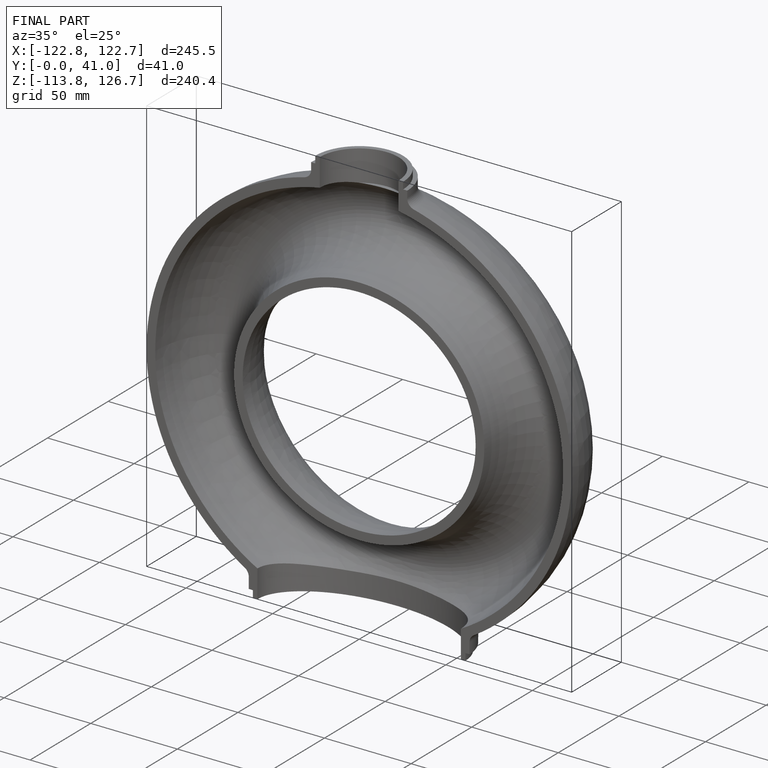
[diagram: finished part — iso view with bounding-box wireframe]
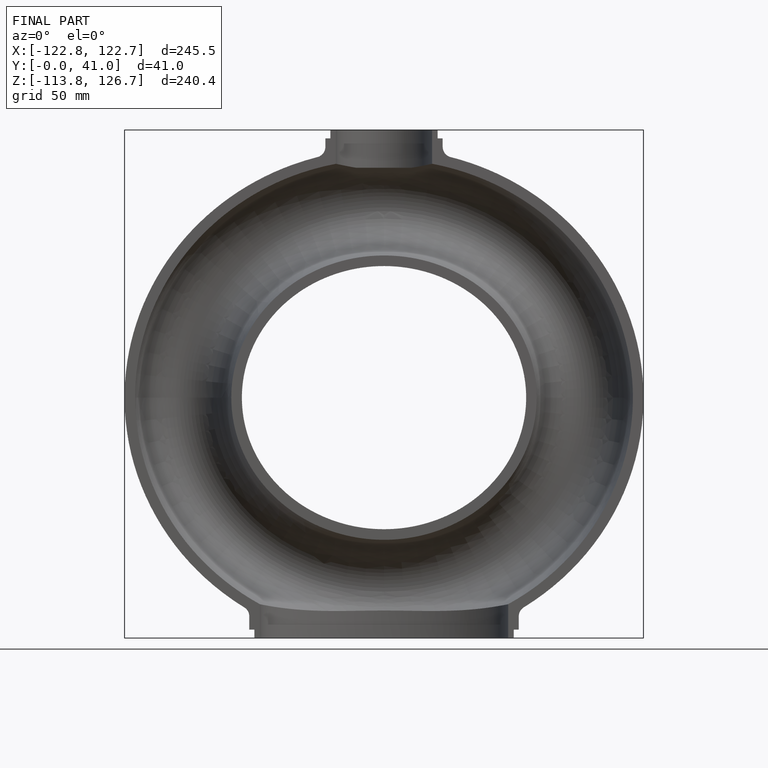
[diagram: finished part — front view with bounding-box wireframe]
